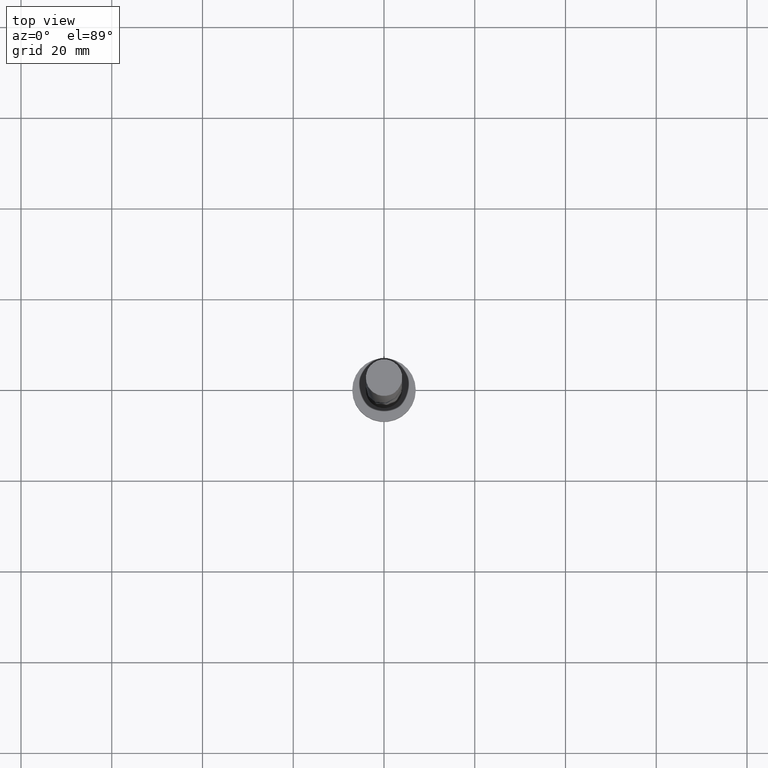
[diagram: clean part render]
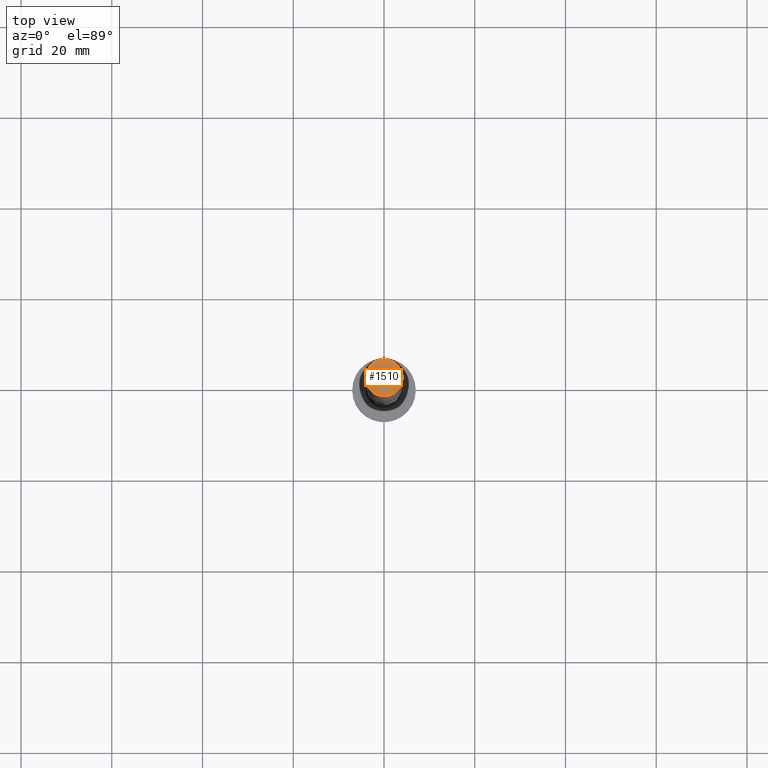
[diagram: same view with one face highlighted and labeled with its STEP entity id]
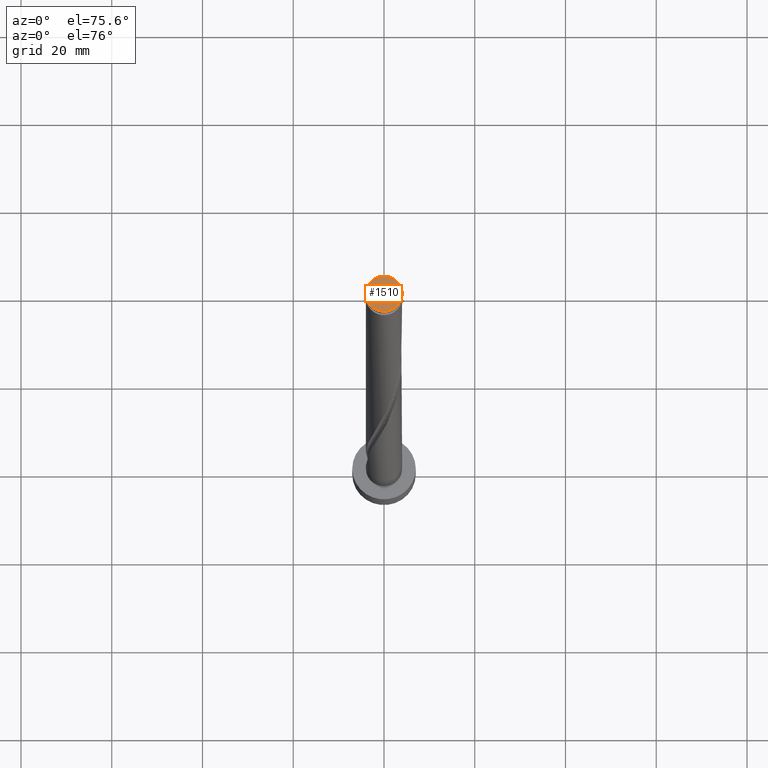
[diagram: same view with one face highlighted and labeled with its STEP entity id]
A machine part, top view. The second image highlights one B-rep face of the part: STEP entity #1510.
A second angle (auxiliary view) of the same face is appended — the face is thin or edge-on in the first view.
In plain terms, the highlighted planar face has unit normal (0, 0, 1).
Its self-contained STEP definition (entity closure, byte-faithful):
#12 = FACE_OUTER_BOUND ( 'NONE', #642, .T. ) ;
#114 = EDGE_CURVE ( 'NONE', #876, #2108, #1371, .T. ) ;
#226 = DIRECTION ( 'NONE',  ( 0.000000000000000000, 0.000000000000000000, 1.000000000000000000 ) ) ;
#439 = PLANE ( 'NONE',  #2137 ) ;
#579 = CARTESIAN_POINT ( 'NONE',  ( -4.000000000000000000, 0.000000000000000000, 160.0000000000000000 ) ) ;
#635 = CARTESIAN_POINT ( 'NONE',  ( 0.000000000000000000, 0.000000000000000000, 160.0000000000000000 ) ) ;
#642 = EDGE_LOOP ( 'NONE', ( #2546, #1265 ) ) ;
#755 = AXIS2_PLACEMENT_3D ( 'NONE', #1766, #1712, #2605 ) ;
#859 = DIRECTION ( 'NONE',  ( 1.000000000000000000, 0.000000000000000000, -0.000000000000000000 ) ) ;
#865 = AXIS2_PLACEMENT_3D ( 'NONE', #1512, #2731, #1731 ) ;
#876 = VERTEX_POINT ( 'NONE', #579 ) ;
#1094 = EDGE_CURVE ( 'NONE', #2108, #876, #1885, .T. ) ;
#1265 = ORIENTED_EDGE ( 'NONE', *, *, #1094, .T. ) ;
#1371 = CIRCLE ( 'NONE', #755, 4.000000000000000000 ) ;
#1510 = ADVANCED_FACE ( 'NONE', ( #12 ), #439, .T. ) ;
#1512 = CARTESIAN_POINT ( 'NONE',  ( 0.000000000000000000, 0.000000000000000000, 160.0000000000000000 ) ) ;
#1712 = DIRECTION ( 'NONE',  ( 0.000000000000000000, 0.000000000000000000, 1.000000000000000000 ) ) ;
#1731 = DIRECTION ( 'NONE',  ( 1.000000000000000000, 0.000000000000000000, 0.000000000000000000 ) ) ;
#1766 = CARTESIAN_POINT ( 'NONE',  ( 0.000000000000000000, 0.000000000000000000, 160.0000000000000000 ) ) ;
#1885 = CIRCLE ( 'NONE', #865, 4.000000000000000000 ) ;
#1908 = CARTESIAN_POINT ( 'NONE',  ( 4.000000000000000000, 4.898587196589412829E-16, 160.0000000000000000 ) ) ;
#2108 = VERTEX_POINT ( 'NONE', #1908 ) ;
#2137 = AXIS2_PLACEMENT_3D ( 'NONE', #635, #226, #859 ) ;
#2546 = ORIENTED_EDGE ( 'NONE', *, *, #114, .T. ) ;
#2605 = DIRECTION ( 'NONE',  ( 1.000000000000000000, 0.000000000000000000, 0.000000000000000000 ) ) ;
#2731 = DIRECTION ( 'NONE',  ( 0.000000000000000000, 0.000000000000000000, 1.000000000000000000 ) ) ;